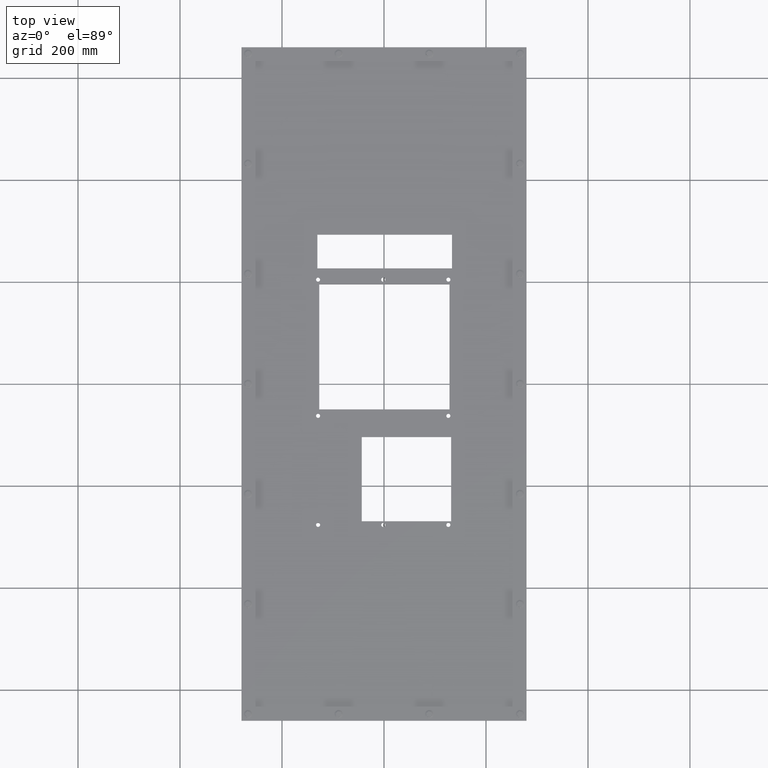
[diagram: clean part render]
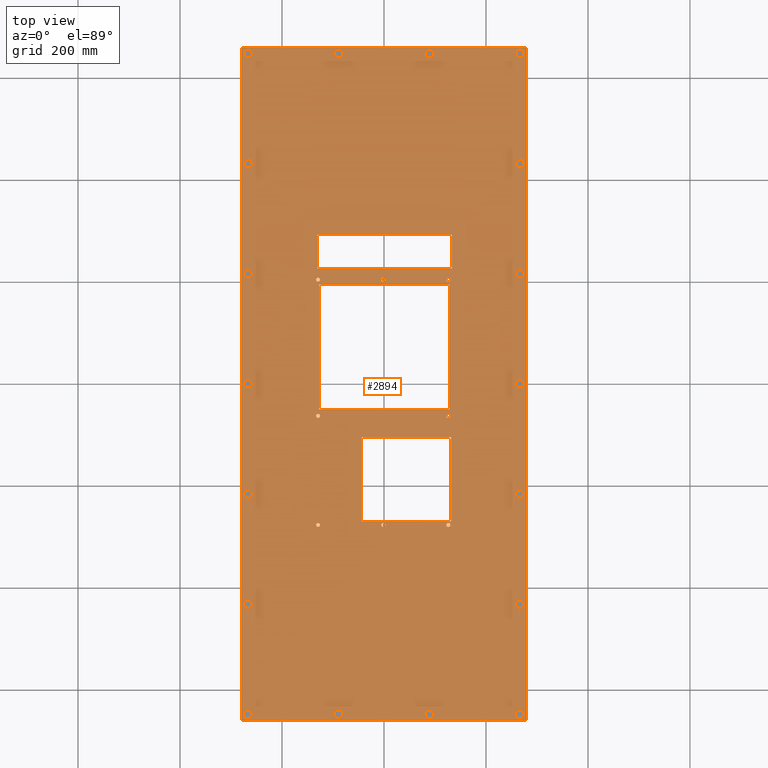
[diagram: same view with one face highlighted and labeled with its STEP entity id]
A machine part, top view. The second image highlights one B-rep face of the part: STEP entity #2894.
In plain terms, the highlighted planar face has unit normal (0, 0, 1).
Its self-contained STEP definition (entity closure, byte-faithful):
#199=FACE_BOUND('',#783,.T.);
#200=FACE_BOUND('',#784,.T.);
#201=FACE_BOUND('',#785,.T.);
#202=FACE_BOUND('',#786,.T.);
#203=FACE_BOUND('',#787,.T.);
#204=FACE_BOUND('',#788,.T.);
#205=FACE_BOUND('',#789,.T.);
#206=FACE_BOUND('',#790,.T.);
#207=FACE_BOUND('',#791,.T.);
#208=FACE_BOUND('',#792,.T.);
#209=FACE_BOUND('',#793,.T.);
#210=FACE_BOUND('',#794,.T.);
#211=FACE_BOUND('',#795,.T.);
#212=FACE_BOUND('',#796,.T.);
#213=FACE_BOUND('',#797,.T.);
#214=FACE_BOUND('',#798,.T.);
#215=FACE_BOUND('',#799,.T.);
#216=FACE_BOUND('',#800,.T.);
#217=FACE_BOUND('',#801,.T.);
#218=FACE_BOUND('',#802,.T.);
#219=FACE_BOUND('',#803,.T.);
#220=FACE_BOUND('',#804,.T.);
#221=FACE_BOUND('',#805,.T.);
#222=FACE_BOUND('',#806,.T.);
#223=FACE_BOUND('',#807,.T.);
#224=FACE_BOUND('',#808,.T.);
#225=FACE_BOUND('',#809,.T.);
#226=FACE_BOUND('',#810,.T.);
#227=FACE_BOUND('',#811,.T.);
#346=CIRCLE('',#3035,0.15625);
#348=CIRCLE('',#3038,0.15625);
#350=CIRCLE('',#3041,0.15625);
#352=CIRCLE('',#3044,0.15625);
#354=CIRCLE('',#3047,0.15625);
#356=CIRCLE('',#3050,0.15625);
#358=CIRCLE('',#3053,0.15625);
#360=CIRCLE('',#3056,0.15625);
#361=CIRCLE('',#3058,0.140625);
#363=CIRCLE('',#3061,0.140625);
#365=CIRCLE('',#3064,0.140625);
#367=CIRCLE('',#3067,0.140625);
#369=CIRCLE('',#3070,0.140625);
#371=CIRCLE('',#3073,0.140625);
#373=CIRCLE('',#3076,0.140625);
#375=CIRCLE('',#3079,0.140625);
#377=CIRCLE('',#3082,0.140625);
#379=CIRCLE('',#3085,0.140625);
#381=CIRCLE('',#3088,0.140625);
#383=CIRCLE('',#3091,0.140625);
#385=CIRCLE('',#3094,0.140625);
#387=CIRCLE('',#3097,0.140625);
#389=CIRCLE('',#3100,0.140625);
#391=CIRCLE('',#3103,0.140625);
#393=CIRCLE('',#3106,0.140625);
#395=CIRCLE('',#3109,0.140625);
#595=FACE_OUTER_BOUND('',#782,.T.);
#782=EDGE_LOOP('',(#2090,#2091,#2092,#2093));
#783=EDGE_LOOP('',(#2094,#2095,#2096,#2097));
#784=EDGE_LOOP('',(#2098,#2099,#2100,#2101));
#785=EDGE_LOOP('',(#2102,#2103,#2104,#2105));
#786=EDGE_LOOP('',(#2106));
#787=EDGE_LOOP('',(#2107));
#788=EDGE_LOOP('',(#2108));
#789=EDGE_LOOP('',(#2109));
#790=EDGE_LOOP('',(#2110));
#791=EDGE_LOOP('',(#2111));
#792=EDGE_LOOP('',(#2112));
#793=EDGE_LOOP('',(#2113));
#794=EDGE_LOOP('',(#2114));
#795=EDGE_LOOP('',(#2115));
#796=EDGE_LOOP('',(#2116));
#797=EDGE_LOOP('',(#2117));
#798=EDGE_LOOP('',(#2118));
#799=EDGE_LOOP('',(#2119));
#800=EDGE_LOOP('',(#2120));
#801=EDGE_LOOP('',(#2121));
#802=EDGE_LOOP('',(#2122));
#803=EDGE_LOOP('',(#2123));
#804=EDGE_LOOP('',(#2124));
#805=EDGE_LOOP('',(#2125));
#806=EDGE_LOOP('',(#2126));
#807=EDGE_LOOP('',(#2127));
#808=EDGE_LOOP('',(#2128));
#809=EDGE_LOOP('',(#2129));
#810=EDGE_LOOP('',(#2130));
#811=EDGE_LOOP('',(#2131));
#1049=LINE('',#4210,#1214);
#1052=LINE('',#4216,#1217);
#1055=LINE('',#4222,#1220);
#1058=LINE('',#4226,#1223);
#1061=LINE('',#4234,#1226);
#1064=LINE('',#4240,#1229);
#1067=LINE('',#4246,#1232);
#1070=LINE('',#4250,#1235);
#1073=LINE('',#4258,#1238);
#1076=LINE('',#4264,#1241);
#1079=LINE('',#4270,#1244);
#1082=LINE('',#4274,#1247);
#1083=LINE('',#4408,#1248);
#1087=LINE('',#4416,#1252);
#1090=LINE('',#4422,#1255);
#1093=LINE('',#4427,#1258);
#1214=VECTOR('',#3365,9.65);
#1217=VECTOR('',#3370,10.06);
#1220=VECTOR('',#3375,9.65);
#1223=VECTOR('',#3380,10.06);
#1226=VECTOR('',#3385,6.5);
#1229=VECTOR('',#3390,6.9);
#1232=VECTOR('',#3395,6.5);
#1235=VECTOR('',#3400,6.9);
#1238=VECTOR('',#3405,2.6);
#1241=VECTOR('',#3410,10.39);
#1244=VECTOR('',#3415,2.6);
#1247=VECTOR('',#3420,10.39);
#1248=VECTOR('',#3579,52.);
#1252=VECTOR('',#3585,22.);
#1255=VECTOR('',#3590,52.);
#1258=VECTOR('',#3595,22.);
#1379=VERTEX_POINT('',#4207);
#1380=VERTEX_POINT('',#4209);
#1382=VERTEX_POINT('',#4215);
#1384=VERTEX_POINT('',#4221);
#1387=VERTEX_POINT('',#4231);
#1388=VERTEX_POINT('',#4233);
#1390=VERTEX_POINT('',#4239);
#1392=VERTEX_POINT('',#4245);
#1395=VERTEX_POINT('',#4255);
#1396=VERTEX_POINT('',#4257);
#1398=VERTEX_POINT('',#4263);
#1400=VERTEX_POINT('',#4269);
#1402=VERTEX_POINT('',#4278);
#1404=VERTEX_POINT('',#4283);
#1406=VERTEX_POINT('',#4288);
#1408=VERTEX_POINT('',#4293);
#1410=VERTEX_POINT('',#4298);
#1412=VERTEX_POINT('',#4303);
#1414=VERTEX_POINT('',#4308);
#1416=VERTEX_POINT('',#4313);
#1417=VERTEX_POINT('',#4316);
#1419=VERTEX_POINT('',#4321);
#1421=VERTEX_POINT('',#4326);
#1423=VERTEX_POINT('',#4331);
#1425=VERTEX_POINT('',#4336);
#1427=VERTEX_POINT('',#4341);
#1429=VERTEX_POINT('',#4346);
#1431=VERTEX_POINT('',#4351);
#1433=VERTEX_POINT('',#4356);
#1435=VERTEX_POINT('',#4361);
#1437=VERTEX_POINT('',#4366);
#1439=VERTEX_POINT('',#4371);
#1441=VERTEX_POINT('',#4376);
#1443=VERTEX_POINT('',#4381);
#1445=VERTEX_POINT('',#4386);
#1447=VERTEX_POINT('',#4391);
#1449=VERTEX_POINT('',#4396);
#1451=VERTEX_POINT('',#4401);
#1453=VERTEX_POINT('',#4406);
#1454=VERTEX_POINT('',#4407);
#1457=VERTEX_POINT('',#4415);
#1459=VERTEX_POINT('',#4421);
#1639=EDGE_CURVE('',#1380,#1379,#1049,.T.);
#1642=EDGE_CURVE('',#1382,#1380,#1052,.T.);
#1645=EDGE_CURVE('',#1384,#1382,#1055,.T.);
#1648=EDGE_CURVE('',#1379,#1384,#1058,.T.);
#1651=EDGE_CURVE('',#1388,#1387,#1061,.T.);
#1654=EDGE_CURVE('',#1390,#1388,#1064,.T.);
#1657=EDGE_CURVE('',#1392,#1390,#1067,.T.);
#1660=EDGE_CURVE('',#1387,#1392,#1070,.T.);
#1663=EDGE_CURVE('',#1396,#1395,#1073,.T.);
#1666=EDGE_CURVE('',#1398,#1396,#1076,.T.);
#1669=EDGE_CURVE('',#1400,#1398,#1079,.T.);
#1672=EDGE_CURVE('',#1395,#1400,#1082,.T.);
#1674=EDGE_CURVE('',#1402,#1402,#346,.T.);
#1676=EDGE_CURVE('',#1404,#1404,#348,.T.);
#1678=EDGE_CURVE('',#1406,#1406,#350,.T.);
#1680=EDGE_CURVE('',#1408,#1408,#352,.T.);
#1682=EDGE_CURVE('',#1410,#1410,#354,.T.);
#1684=EDGE_CURVE('',#1412,#1412,#356,.T.);
#1686=EDGE_CURVE('',#1414,#1414,#358,.T.);
#1688=EDGE_CURVE('',#1416,#1416,#360,.T.);
#1689=EDGE_CURVE('',#1417,#1417,#361,.T.);
#1691=EDGE_CURVE('',#1419,#1419,#363,.T.);
#1693=EDGE_CURVE('',#1421,#1421,#365,.T.);
#1695=EDGE_CURVE('',#1423,#1423,#367,.T.);
#1697=EDGE_CURVE('',#1425,#1425,#369,.T.);
#1699=EDGE_CURVE('',#1427,#1427,#371,.T.);
#1701=EDGE_CURVE('',#1429,#1429,#373,.T.);
#1703=EDGE_CURVE('',#1431,#1431,#375,.T.);
#1705=EDGE_CURVE('',#1433,#1433,#377,.T.);
#1707=EDGE_CURVE('',#1435,#1435,#379,.T.);
#1709=EDGE_CURVE('',#1437,#1437,#381,.T.);
#1711=EDGE_CURVE('',#1439,#1439,#383,.T.);
#1713=EDGE_CURVE('',#1441,#1441,#385,.T.);
#1715=EDGE_CURVE('',#1443,#1443,#387,.T.);
#1717=EDGE_CURVE('',#1445,#1445,#389,.T.);
#1719=EDGE_CURVE('',#1447,#1447,#391,.T.);
#1721=EDGE_CURVE('',#1449,#1449,#393,.T.);
#1723=EDGE_CURVE('',#1451,#1451,#395,.T.);
#1725=EDGE_CURVE('',#1453,#1454,#1083,.T.);
#1729=EDGE_CURVE('',#1454,#1457,#1087,.T.);
#1732=EDGE_CURVE('',#1457,#1459,#1090,.T.);
#1735=EDGE_CURVE('',#1459,#1453,#1093,.T.);
#2090=ORIENTED_EDGE('',*,*,#1725,.F.);
#2091=ORIENTED_EDGE('',*,*,#1735,.F.);
#2092=ORIENTED_EDGE('',*,*,#1732,.F.);
#2093=ORIENTED_EDGE('',*,*,#1729,.F.);
#2094=ORIENTED_EDGE('',*,*,#1639,.T.);
#2095=ORIENTED_EDGE('',*,*,#1648,.T.);
#2096=ORIENTED_EDGE('',*,*,#1645,.T.);
#2097=ORIENTED_EDGE('',*,*,#1642,.T.);
#2098=ORIENTED_EDGE('',*,*,#1651,.T.);
#2099=ORIENTED_EDGE('',*,*,#1660,.T.);
#2100=ORIENTED_EDGE('',*,*,#1657,.T.);
#2101=ORIENTED_EDGE('',*,*,#1654,.T.);
#2102=ORIENTED_EDGE('',*,*,#1663,.T.);
#2103=ORIENTED_EDGE('',*,*,#1672,.T.);
#2104=ORIENTED_EDGE('',*,*,#1669,.T.);
#2105=ORIENTED_EDGE('',*,*,#1666,.T.);
#2106=ORIENTED_EDGE('',*,*,#1674,.T.);
#2107=ORIENTED_EDGE('',*,*,#1676,.T.);
#2108=ORIENTED_EDGE('',*,*,#1678,.T.);
#2109=ORIENTED_EDGE('',*,*,#1680,.T.);
#2110=ORIENTED_EDGE('',*,*,#1682,.T.);
#2111=ORIENTED_EDGE('',*,*,#1684,.T.);
#2112=ORIENTED_EDGE('',*,*,#1686,.T.);
#2113=ORIENTED_EDGE('',*,*,#1688,.T.);
#2114=ORIENTED_EDGE('',*,*,#1689,.T.);
#2115=ORIENTED_EDGE('',*,*,#1691,.T.);
#2116=ORIENTED_EDGE('',*,*,#1693,.T.);
#2117=ORIENTED_EDGE('',*,*,#1695,.T.);
#2118=ORIENTED_EDGE('',*,*,#1697,.T.);
#2119=ORIENTED_EDGE('',*,*,#1699,.T.);
#2120=ORIENTED_EDGE('',*,*,#1701,.T.);
#2121=ORIENTED_EDGE('',*,*,#1703,.T.);
#2122=ORIENTED_EDGE('',*,*,#1705,.T.);
#2123=ORIENTED_EDGE('',*,*,#1707,.T.);
#2124=ORIENTED_EDGE('',*,*,#1709,.T.);
#2125=ORIENTED_EDGE('',*,*,#1711,.T.);
#2126=ORIENTED_EDGE('',*,*,#1713,.T.);
#2127=ORIENTED_EDGE('',*,*,#1715,.T.);
#2128=ORIENTED_EDGE('',*,*,#1717,.T.);
#2129=ORIENTED_EDGE('',*,*,#1719,.T.);
#2130=ORIENTED_EDGE('',*,*,#1721,.T.);
#2131=ORIENTED_EDGE('',*,*,#1723,.T.);
#2664=PLANE('',#3115);
#2894=ADVANCED_FACE('',(#595,#199,#200,#201,#202,#203,#204,#205,#206,#207,
#208,#209,#210,#211,#212,#213,#214,#215,#216,#217,#218,#219,#220,#221,#222,
#223,#224,#225,#226,#227),#2664,.T.);
#3035=AXIS2_PLACEMENT_3D('',#4279,#3425,#3426);
#3038=AXIS2_PLACEMENT_3D('',#4284,#3431,#3432);
#3041=AXIS2_PLACEMENT_3D('',#4289,#3437,#3438);
#3044=AXIS2_PLACEMENT_3D('',#4294,#3443,#3444);
#3047=AXIS2_PLACEMENT_3D('',#4299,#3449,#3450);
#3050=AXIS2_PLACEMENT_3D('',#4304,#3455,#3456);
#3053=AXIS2_PLACEMENT_3D('',#4309,#3461,#3462);
#3056=AXIS2_PLACEMENT_3D('',#4314,#3467,#3468);
#3058=AXIS2_PLACEMENT_3D('',#4317,#3471,#3472);
#3061=AXIS2_PLACEMENT_3D('',#4322,#3477,#3478);
#3064=AXIS2_PLACEMENT_3D('',#4327,#3483,#3484);
#3067=AXIS2_PLACEMENT_3D('',#4332,#3489,#3490);
#3070=AXIS2_PLACEMENT_3D('',#4337,#3495,#3496);
#3073=AXIS2_PLACEMENT_3D('',#4342,#3501,#3502);
#3076=AXIS2_PLACEMENT_3D('',#4347,#3507,#3508);
#3079=AXIS2_PLACEMENT_3D('',#4352,#3513,#3514);
#3082=AXIS2_PLACEMENT_3D('',#4357,#3519,#3520);
#3085=AXIS2_PLACEMENT_3D('',#4362,#3525,#3526);
#3088=AXIS2_PLACEMENT_3D('',#4367,#3531,#3532);
#3091=AXIS2_PLACEMENT_3D('',#4372,#3537,#3538);
#3094=AXIS2_PLACEMENT_3D('',#4377,#3543,#3544);
#3097=AXIS2_PLACEMENT_3D('',#4382,#3549,#3550);
#3100=AXIS2_PLACEMENT_3D('',#4387,#3555,#3556);
#3103=AXIS2_PLACEMENT_3D('',#4392,#3561,#3562);
#3106=AXIS2_PLACEMENT_3D('',#4397,#3567,#3568);
#3109=AXIS2_PLACEMENT_3D('',#4402,#3573,#3574);
#3115=AXIS2_PLACEMENT_3D('',#4429,#3597,#3598);
#3365=DIRECTION('',(-2.89887289690384E-16,1.,0.));
#3370=DIRECTION('',(-1.,-1.73795498602895E-16,0.));
#3375=DIRECTION('',(-2.17415467267788E-16,-1.,0.));
#3380=DIRECTION('',(1.,0.,0.));
#3385=DIRECTION('',(-4.30371130078801E-16,1.,0.));
#3390=DIRECTION('',(-1.,-2.0271103952987E-16,0.));
#3395=DIRECTION('',(2.151855650394E-16,-1.,0.));
#3400=DIRECTION('',(1.,2.0271103952987E-16,0.));
#3405=DIRECTION('',(-5.37963912598501E-16,1.,0.));
#3410=DIRECTION('',(-1.,0.,0.));
#3415=DIRECTION('',(2.6898195629925E-16,-1.,0.));
#3420=DIRECTION('',(1.,2.69240841723985E-16,0.));
#3425=DIRECTION('center_axis',(0.,0.,-1.));
#3426=DIRECTION('ref_axis',(-1.,0.,0.));
#3431=DIRECTION('center_axis',(0.,0.,-1.));
#3432=DIRECTION('ref_axis',(-1.,0.,0.));
#3437=DIRECTION('center_axis',(0.,0.,-1.));
#3438=DIRECTION('ref_axis',(-1.,0.,0.));
#3443=DIRECTION('center_axis',(0.,0.,-1.));
#3444=DIRECTION('ref_axis',(-1.,0.,0.));
#3449=DIRECTION('center_axis',(0.,0.,-1.));
#3450=DIRECTION('ref_axis',(-1.,0.,0.));
#3455=DIRECTION('center_axis',(0.,0.,-1.));
#3456=DIRECTION('ref_axis',(-1.,0.,0.));
#3461=DIRECTION('center_axis',(0.,0.,-1.));
#3462=DIRECTION('ref_axis',(-1.,0.,0.));
#3467=DIRECTION('center_axis',(0.,0.,-1.));
#3468=DIRECTION('ref_axis',(-1.,0.,0.));
#3471=DIRECTION('center_axis',(0.,0.,-1.));
#3472=DIRECTION('ref_axis',(1.,0.,0.));
#3477=DIRECTION('center_axis',(0.,0.,-1.));
#3478=DIRECTION('ref_axis',(1.,0.,0.));
#3483=DIRECTION('center_axis',(0.,0.,-1.));
#3484=DIRECTION('ref_axis',(1.,0.,0.));
#3489=DIRECTION('center_axis',(0.,0.,-1.));
#3490=DIRECTION('ref_axis',(1.,0.,0.));
#3495=DIRECTION('center_axis',(0.,0.,-1.));
#3496=DIRECTION('ref_axis',(1.,0.,0.));
#3501=DIRECTION('center_axis',(0.,0.,-1.));
#3502=DIRECTION('ref_axis',(1.,0.,0.));
#3507=DIRECTION('center_axis',(0.,0.,-1.));
#3508=DIRECTION('ref_axis',(1.,0.,0.));
#3513=DIRECTION('center_axis',(0.,0.,-1.));
#3514=DIRECTION('ref_axis',(1.,0.,0.));
#3519=DIRECTION('center_axis',(0.,0.,-1.));
#3520=DIRECTION('ref_axis',(1.,0.,0.));
#3525=DIRECTION('center_axis',(0.,0.,-1.));
#3526=DIRECTION('ref_axis',(1.,0.,0.));
#3531=DIRECTION('center_axis',(0.,0.,-1.));
#3532=DIRECTION('ref_axis',(1.,0.,0.));
#3537=DIRECTION('center_axis',(0.,0.,-1.));
#3538=DIRECTION('ref_axis',(1.,0.,0.));
#3543=DIRECTION('center_axis',(0.,0.,-1.));
#3544=DIRECTION('ref_axis',(1.,0.,0.));
#3549=DIRECTION('center_axis',(0.,0.,-1.));
#3550=DIRECTION('ref_axis',(1.,0.,0.));
#3555=DIRECTION('center_axis',(0.,0.,-1.));
#3556=DIRECTION('ref_axis',(1.,0.,0.));
#3561=DIRECTION('center_axis',(0.,0.,-1.));
#3562=DIRECTION('ref_axis',(1.,0.,0.));
#3567=DIRECTION('center_axis',(0.,0.,-1.));
#3568=DIRECTION('ref_axis',(1.,0.,0.));
#3573=DIRECTION('center_axis',(0.,0.,-1.));
#3574=DIRECTION('ref_axis',(1.,0.,0.));
#3579=DIRECTION('',(5.37963912598501E-17,-1.,0.));
#3585=DIRECTION('',(-1.,0.,0.));
#3590=DIRECTION('',(-2.151855650394E-16,1.,0.));
#3595=DIRECTION('',(1.,0.,0.));
#3597=DIRECTION('center_axis',(0.,0.,1.));
#3598=DIRECTION('ref_axis',(1.,0.,0.));
#4207=CARTESIAN_POINT('',(-5.,7.685,0.125));
#4209=CARTESIAN_POINT('',(-5.,-1.965,0.125));
#4210=CARTESIAN_POINT('',(-5.,3.8425,0.125));
#4215=CARTESIAN_POINT('',(5.06,-1.965,0.125));
#4216=CARTESIAN_POINT('',(-2.5,-1.965,0.125));
#4221=CARTESIAN_POINT('',(5.06000000000001,7.685,0.125));
#4222=CARTESIAN_POINT('',(5.06,-0.982500000000001,0.125));
#4226=CARTESIAN_POINT('',(2.53,7.685,0.125));
#4231=CARTESIAN_POINT('',(-1.72,-4.105,0.125));
#4233=CARTESIAN_POINT('',(-1.72,-10.605,0.125));
#4234=CARTESIAN_POINT('',(-1.72,-2.0525,0.125));
#4239=CARTESIAN_POINT('',(5.18,-10.605,0.125));
#4240=CARTESIAN_POINT('',(-0.859999999999997,-10.605,0.125));
#4245=CARTESIAN_POINT('',(5.18,-4.105,0.125));
#4246=CARTESIAN_POINT('',(5.18,-5.3025,0.125));
#4250=CARTESIAN_POINT('',(2.59,-4.105,0.125));
#4255=CARTESIAN_POINT('',(-5.14,11.525,0.125));
#4257=CARTESIAN_POINT('',(-5.14,8.925,0.125));
#4258=CARTESIAN_POINT('',(-5.14,5.7625,0.125));
#4263=CARTESIAN_POINT('',(5.25,8.925,0.125));
#4264=CARTESIAN_POINT('',(-2.57,8.925,0.125));
#4269=CARTESIAN_POINT('',(5.25,11.525,0.125));
#4270=CARTESIAN_POINT('',(5.25,4.4625,0.125));
#4274=CARTESIAN_POINT('',(2.625,11.525,0.125));
#4278=CARTESIAN_POINT('',(5.12624999999999,8.055,0.125));
#4279=CARTESIAN_POINT('Origin',(4.96999999999999,8.055,0.125));
#4283=CARTESIAN_POINT('',(0.0962499999999921,8.055,0.125));
#4284=CARTESIAN_POINT('Origin',(-0.0600000000000082,8.055,0.125));
#4288=CARTESIAN_POINT('',(-4.93375000000001,8.055,0.125));
#4289=CARTESIAN_POINT('Origin',(-5.09000000000001,8.055,0.125));
#4293=CARTESIAN_POINT('',(5.12625,-2.465,0.125));
#4294=CARTESIAN_POINT('Origin',(4.97,-2.465,0.125));
#4298=CARTESIAN_POINT('',(-4.93375,-2.465,0.125));
#4299=CARTESIAN_POINT('Origin',(-5.09,-2.465,0.125));
#4303=CARTESIAN_POINT('',(-4.93375,-10.885,0.125));
#4304=CARTESIAN_POINT('Origin',(-5.09,-10.885,0.125));
#4308=CARTESIAN_POINT('',(0.0962500000000033,-10.885,0.125));
#4309=CARTESIAN_POINT('Origin',(-0.0599999999999971,-10.885,0.125));
#4313=CARTESIAN_POINT('',(5.12625,-10.885,0.125));
#4314=CARTESIAN_POINT('Origin',(4.97,-10.885,0.125));
#4316=CARTESIAN_POINT('',(10.640625,-25.5,0.125));
#4317=CARTESIAN_POINT('Origin',(10.5,-25.5,0.125));
#4321=CARTESIAN_POINT('',(3.640625,-25.5,0.125));
#4322=CARTESIAN_POINT('Origin',(3.5,-25.5,0.125));
#4326=CARTESIAN_POINT('',(-3.359375,-25.5,0.125));
#4327=CARTESIAN_POINT('Origin',(-3.5,-25.5,0.125));
#4331=CARTESIAN_POINT('',(-10.359375,-25.5,0.125));
#4332=CARTESIAN_POINT('Origin',(-10.5,-25.5,0.125));
#4336=CARTESIAN_POINT('',(10.640625,-17.,0.125));
#4337=CARTESIAN_POINT('Origin',(10.5,-17.,0.125));
#4341=CARTESIAN_POINT('',(-10.359375,-17.,0.125));
#4342=CARTESIAN_POINT('Origin',(-10.5,-17.,0.125));
#4346=CARTESIAN_POINT('',(10.640625,-8.5,0.125));
#4347=CARTESIAN_POINT('Origin',(10.5,-8.5,0.125));
#4351=CARTESIAN_POINT('',(-10.359375,-8.5,0.125));
#4352=CARTESIAN_POINT('Origin',(-10.5,-8.5,0.125));
#4356=CARTESIAN_POINT('',(10.640625,0.,0.125));
#4357=CARTESIAN_POINT('Origin',(10.5,0.,0.125));
#4361=CARTESIAN_POINT('',(-10.359375,0.,0.125));
#4362=CARTESIAN_POINT('Origin',(-10.5,0.,0.125));
#4366=CARTESIAN_POINT('',(10.640625,8.5,0.125));
#4367=CARTESIAN_POINT('Origin',(10.5,8.5,0.125));
#4371=CARTESIAN_POINT('',(-10.359375,8.5,0.125));
#4372=CARTESIAN_POINT('Origin',(-10.5,8.5,0.125));
#4376=CARTESIAN_POINT('',(10.640625,17.,0.125));
#4377=CARTESIAN_POINT('Origin',(10.5,17.,0.125));
#4381=CARTESIAN_POINT('',(-10.359375,17.,0.125));
#4382=CARTESIAN_POINT('Origin',(-10.5,17.,0.125));
#4386=CARTESIAN_POINT('',(10.640625,25.5,0.125));
#4387=CARTESIAN_POINT('Origin',(10.5,25.5,0.125));
#4391=CARTESIAN_POINT('',(3.64062499999999,25.5,0.125));
#4392=CARTESIAN_POINT('Origin',(3.49999999999999,25.5,0.125));
#4396=CARTESIAN_POINT('',(-3.35937500000001,25.5,0.125));
#4397=CARTESIAN_POINT('Origin',(-3.50000000000001,25.5,0.125));
#4401=CARTESIAN_POINT('',(-10.359375,25.5,0.125));
#4402=CARTESIAN_POINT('Origin',(-10.5,25.5,0.125));
#4406=CARTESIAN_POINT('',(11.,26.,0.125));
#4407=CARTESIAN_POINT('',(11.,-26.,0.125));
#4408=CARTESIAN_POINT('',(11.,26.,0.125));
#4415=CARTESIAN_POINT('',(-11.,-26.,0.125));
#4416=CARTESIAN_POINT('',(11.,-26.,0.125));
#4421=CARTESIAN_POINT('',(-11.,26.,0.125));
#4422=CARTESIAN_POINT('',(-11.,-26.,0.125));
#4427=CARTESIAN_POINT('',(-11.,26.,0.125));
#4429=CARTESIAN_POINT('Origin',(0.,2.26129892303075E-15,0.125));